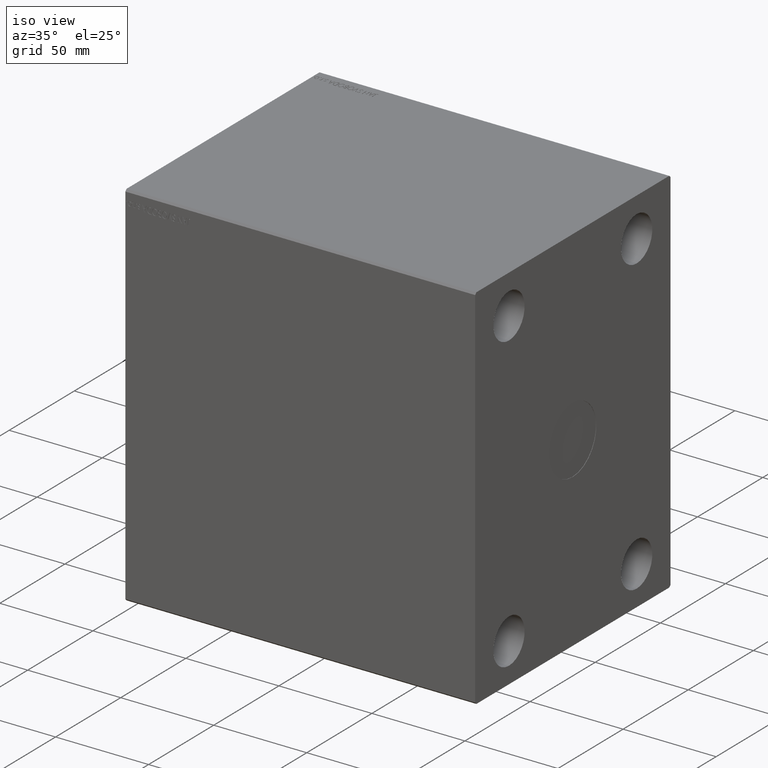
[diagram: clean part render]
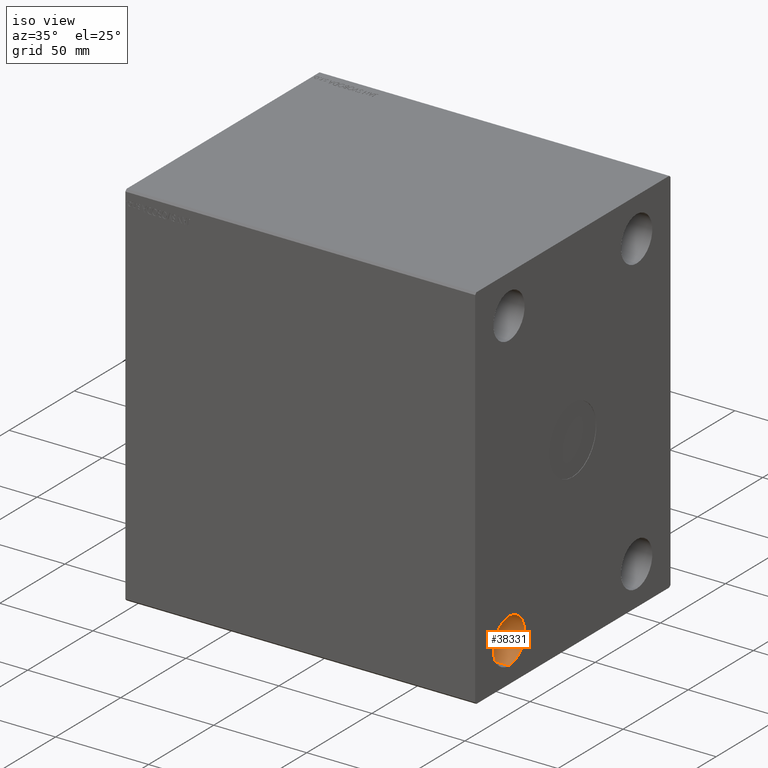
[diagram: same view with one face highlighted and labeled with its STEP entity id]
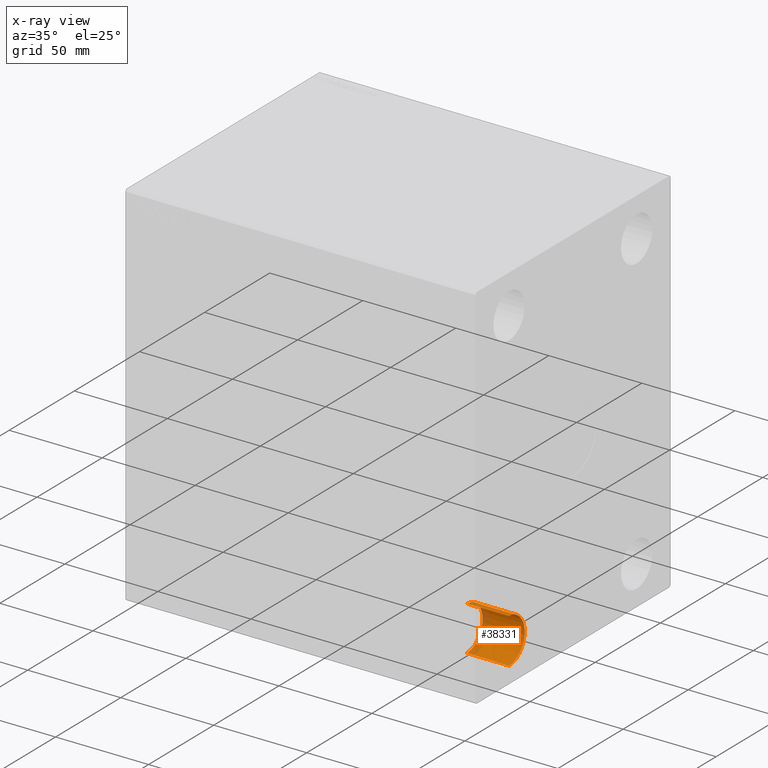
[diagram: x-ray of the same camera — body ghosted, the highlighted face saturated]
A machine part, iso view. The second image highlights one B-rep face of the part: STEP entity #38331.
The next image is the same camera in x-ray: the body ghosted, the highlighted face saturated — about 16% of this face is hidden behind the body in this view.
In plain terms, the highlighted cylindrical surface (edge-blend (fillet) strip) has radius 12 mm, axis along (1, 0, 0).
Its self-contained STEP definition (entity closure, byte-faithful):
#98 = CARTESIAN_POINT ( 'NONE',  ( 188.0000000000000000, -49.00000000000000000, -79.00000000000000000 ) ) ;
#1327 = AXIS2_PLACEMENT_3D ( 'NONE', #41902, #21421, #24975 ) ;
#3466 = EDGE_CURVE ( 'NONE', #36622, #14505, #18991, .T. ) ;
#5758 = VERTEX_POINT ( 'NONE', #41495 ) ;
#6322 = CIRCLE ( 'NONE', #1327, 11.99999999999999645 ) ;
#9655 = ORIENTED_EDGE ( 'NONE', *, *, #3466, .F. ) ;
#10307 = ORIENTED_EDGE ( 'NONE', *, *, #34809, .T. ) ;
#11238 = DIRECTION ( 'NONE',  ( 1.000000000000000000, -0.000000000000000000, -0.000000000000000000 ) ) ;
#11461 = FACE_OUTER_BOUND ( 'NONE', #41697, .T. ) ;
#11710 = EDGE_CURVE ( 'NONE', #5758, #36622, #6322, .T. ) ;
#12721 = AXIS2_PLACEMENT_3D ( 'NONE', #98, #23441, #37026 ) ;
#13308 = EDGE_CURVE ( 'NONE', #35891, #14505, #41858, .T. ) ;
#13922 = ORIENTED_EDGE ( 'NONE', *, *, #13308, .T. ) ;
#14505 = VERTEX_POINT ( 'NONE', #35161 ) ;
#15648 = CARTESIAN_POINT ( 'NONE',  ( 188.0000000000000000, -49.00000000000000000, -67.00000000000000000 ) ) ;
#17140 = DIRECTION ( 'NONE',  ( 1.000000000000000000, -0.000000000000000000, -0.000000000000000000 ) ) ;
#18035 = CARTESIAN_POINT ( 'NONE',  ( 165.3300000000000125, -49.00000000000000000, -67.00000000000000000 ) ) ;
#18991 = LINE ( 'NONE', #15648, #22376 ) ;
#18998 = CYLINDRICAL_SURFACE ( 'NONE', #24390, 11.99999999999999645 ) ;
#20261 = LINE ( 'NONE', #40740, #22897 ) ;
#21421 = DIRECTION ( 'NONE',  ( 1.000000000000000000, -0.000000000000000000, -0.000000000000000000 ) ) ;
#22108 = DIRECTION ( 'NONE',  ( 1.000000000000000000, -0.000000000000000000, -0.000000000000000000 ) ) ;
#22376 = VECTOR ( 'NONE', #22108, 1000.000000000000000 ) ;
#22897 = VECTOR ( 'NONE', #17140, 1000.000000000000000 ) ;
#23441 = DIRECTION ( 'NONE',  ( 1.000000000000000000, -0.000000000000000000, -0.000000000000000000 ) ) ;
#24390 = AXIS2_PLACEMENT_3D ( 'NONE', #42383, #11238, #24803 ) ;
#24803 = DIRECTION ( 'NONE',  ( 0.000000000000000000, 0.000000000000000000, -1.000000000000000000 ) ) ;
#24975 = DIRECTION ( 'NONE',  ( 0.000000000000000000, 0.000000000000000000, -1.000000000000000000 ) ) ;
#27287 = ORIENTED_EDGE ( 'NONE', *, *, #11710, .F. ) ;
#34809 = EDGE_CURVE ( 'NONE', #5758, #35891, #20261, .T. ) ;
#35161 = CARTESIAN_POINT ( 'NONE',  ( 188.0000000000000000, -49.00000000000000000, -67.00000000000000000 ) ) ;
#35891 = VERTEX_POINT ( 'NONE', #39986 ) ;
#36622 = VERTEX_POINT ( 'NONE', #18035 ) ;
#37026 = DIRECTION ( 'NONE',  ( 0.000000000000000000, 0.000000000000000000, -1.000000000000000000 ) ) ;
#38331 = ADVANCED_FACE ( 'NONE', ( #11461 ), #18998, .F. ) ;
#39986 = CARTESIAN_POINT ( 'NONE',  ( 188.0000000000000000, -49.00000000000000000, -91.00000000000000000 ) ) ;
#40740 = CARTESIAN_POINT ( 'NONE',  ( 188.0000000000000000, -49.00000000000000000, -91.00000000000000000 ) ) ;
#41495 = CARTESIAN_POINT ( 'NONE',  ( 165.3300000000000125, -49.00000000000000000, -91.00000000000000000 ) ) ;
#41697 = EDGE_LOOP ( 'NONE', ( #9655, #27287, #10307, #13922 ) ) ;
#41858 = CIRCLE ( 'NONE', #12721, 11.99999999999999645 ) ;
#41902 = CARTESIAN_POINT ( 'NONE',  ( 165.3300000000000125, -49.00000000000000000, -79.00000000000000000 ) ) ;
#42383 = CARTESIAN_POINT ( 'NONE',  ( 188.0000000000000000, -49.00000000000000000, -79.00000000000000000 ) ) ;